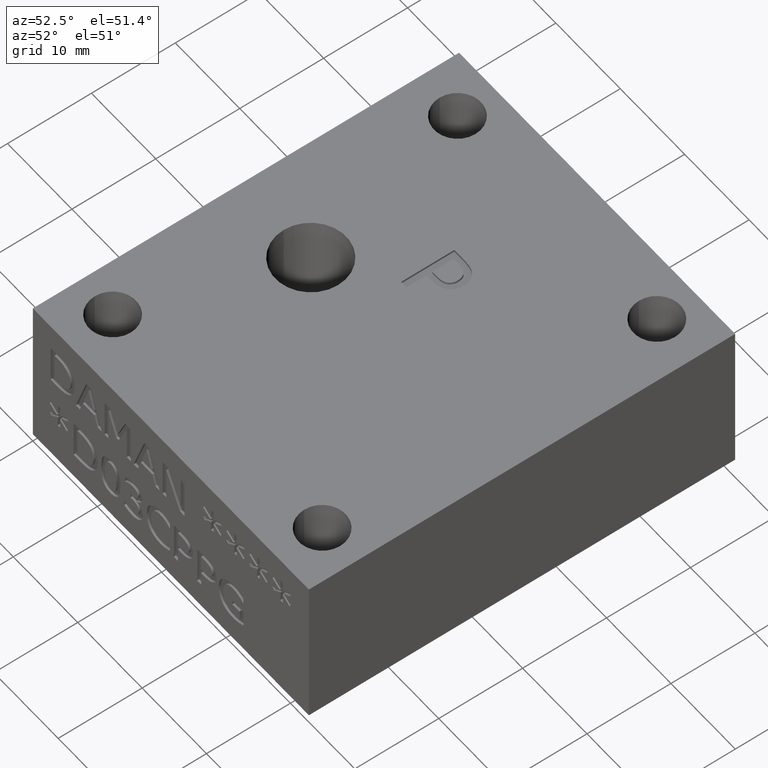
[diagram: clean part render]
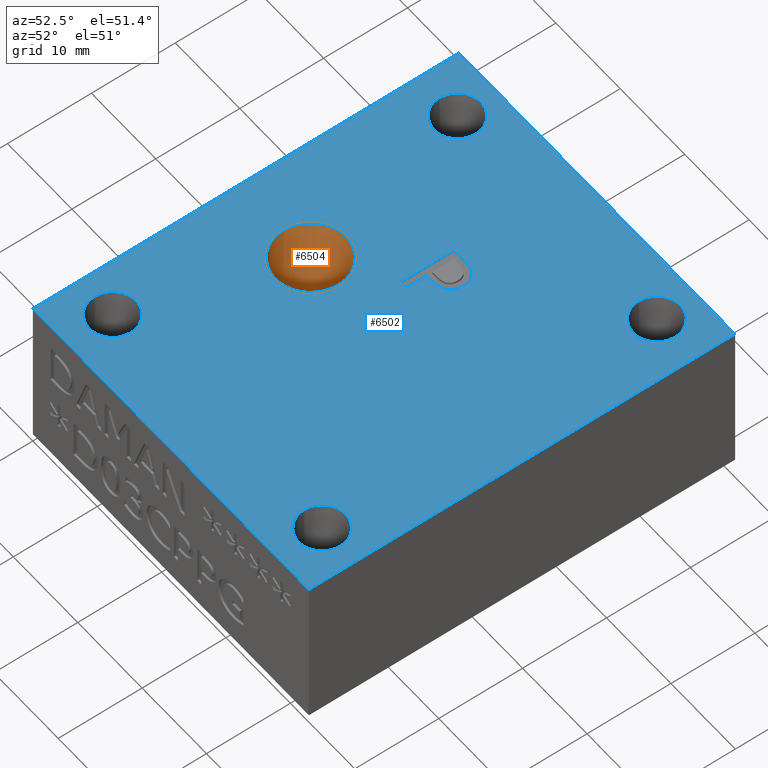
[diagram: same view with the hole feature highlighted: cylindrical wall and planar end face, labeled with their STEP entity ids]
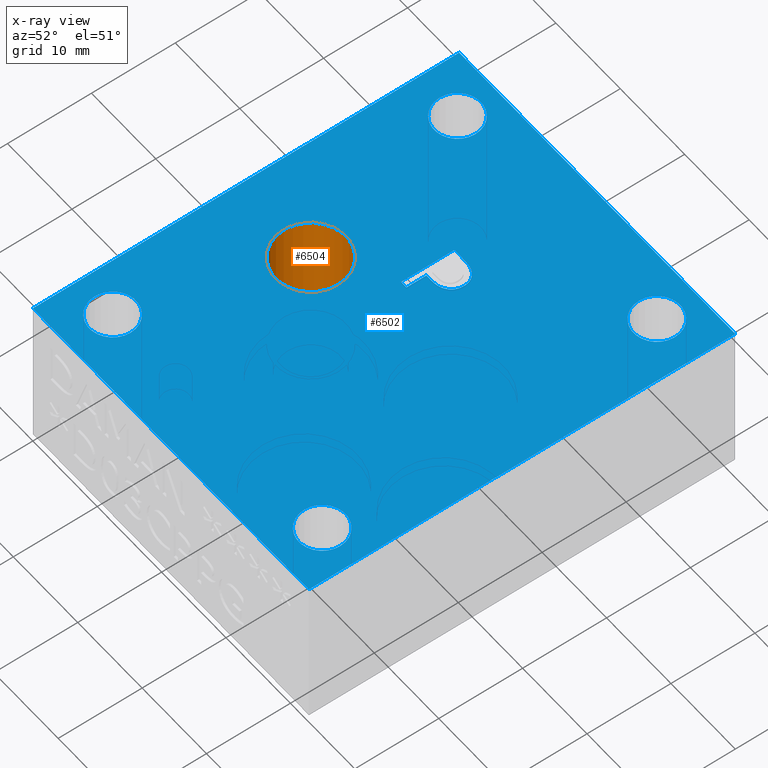
[diagram: x-ray of the same camera — body ghosted, the hole faces saturated]
A machine part, auxiliary view. The highlighted faces form one hole feature of diameter 8.4328 mm: the cylindrical wall (entity #6504, orange) and its adjacent planar end face (entity #6502, blue) — they share a circular edge in the B-rep.
The next image is the same camera in x-ray (body ghosted, the hole faces saturated) — the bore reads through the body.
Wall:
#15=CYLINDRICAL_SURFACE('',#6772,0.166);
#32=CIRCLE('',#6766,0.166);
#33=CIRCLE('',#6767,0.166);
#35=CIRCLE('',#6770,0.166);
#36=CIRCLE('',#6771,0.166);
#526=FACE_OUTER_BOUND('',#897,.T.);
#897=EDGE_LOOP('',(#5839,#5840,#5841,#5842,#5843,#5844));
#1608=LINE('',#11501,#2304);
#2304=VECTOR('',#7958,0.166);
#3115=VERTEX_POINT('',#11488);
#3116=VERTEX_POINT('',#11489);
#3118=VERTEX_POINT('',#11495);
#3119=VERTEX_POINT('',#11497);
#4036=EDGE_CURVE('',#3115,#3116,#32,.T.);
#4037=EDGE_CURVE('',#3116,#3115,#33,.T.);
#4040=EDGE_CURVE('',#3118,#3119,#35,.T.);
#4041=EDGE_CURVE('',#3119,#3118,#36,.T.);
#4042=EDGE_CURVE('',#3118,#3116,#1608,.T.);
#5839=ORIENTED_EDGE('',*,*,#4041,.F.);
#5840=ORIENTED_EDGE('',*,*,#4040,.F.);
#5841=ORIENTED_EDGE('',*,*,#4042,.T.);
#5842=ORIENTED_EDGE('',*,*,#4036,.F.);
#5843=ORIENTED_EDGE('',*,*,#4037,.F.);
#5844=ORIENTED_EDGE('',*,*,#4042,.F.);
#6504=ADVANCED_FACE('',(#526),#15,.F.);
#6766=AXIS2_PLACEMENT_3D('',#11490,#7943,#7944);
#6767=AXIS2_PLACEMENT_3D('',#11491,#7945,#7946);
#6770=AXIS2_PLACEMENT_3D('',#11498,#7952,#7953);
#6771=AXIS2_PLACEMENT_3D('',#11499,#7954,#7955);
#6772=AXIS2_PLACEMENT_3D('',#11500,#7956,#7957);
#7943=DIRECTION('center_axis',(0.,0.,-1.));
#7944=DIRECTION('ref_axis',(1.,0.,0.));
#7945=DIRECTION('center_axis',(0.,0.,-1.));
#7946=DIRECTION('ref_axis',(1.,0.,0.));
#7952=DIRECTION('center_axis',(0.,0.,1.));
#7953=DIRECTION('ref_axis',(1.,0.,0.));
#7954=DIRECTION('center_axis',(0.,0.,1.));
#7955=DIRECTION('ref_axis',(1.,0.,0.));
#7956=DIRECTION('center_axis',(0.,0.,1.));
#7957=DIRECTION('ref_axis',(1.,0.,0.));
#7958=DIRECTION('',(0.,0.,1.));
#11488=CARTESIAN_POINT('',(0.604,0.968,0.75));
#11489=CARTESIAN_POINT('',(0.272,0.968,0.75));
#11490=CARTESIAN_POINT('Origin',(0.438,0.968,0.75));
#11491=CARTESIAN_POINT('Origin',(0.438,0.968,0.75));
#11495=CARTESIAN_POINT('',(0.272,0.968,0.23));
#11497=CARTESIAN_POINT('',(0.604,0.968,0.23));
#11498=CARTESIAN_POINT('Origin',(0.438,0.968,0.23));
#11499=CARTESIAN_POINT('Origin',(0.438,0.968,0.23));
#11500=CARTESIAN_POINT('Origin',(0.438,0.968,0.49));
#11501=CARTESIAN_POINT('',(0.272,0.968,0.49));
End face:
#28=CIRCLE('',#6762,0.1095);
#29=CIRCLE('',#6763,0.1095);
#30=CIRCLE('',#6764,0.1095);
#31=CIRCLE('',#6765,0.1095);
#32=CIRCLE('',#6766,0.166);
#33=CIRCLE('',#6767,0.166);
#91=FACE_BOUND('',#890,.T.);
#92=FACE_BOUND('',#891,.T.);
#93=FACE_BOUND('',#892,.T.);
#94=FACE_BOUND('',#893,.T.);
#95=FACE_BOUND('',#894,.T.);
#96=FACE_BOUND('',#895,.T.);
#524=FACE_OUTER_BOUND('',#889,.T.);
#889=EDGE_LOOP('',(#5815,#5816,#5817,#5818));
#890=EDGE_LOOP('',(#5819));
#891=EDGE_LOOP('',(#5820));
#892=EDGE_LOOP('',(#5821));
#893=EDGE_LOOP('',(#5822));
#894=EDGE_LOOP('',(#5823,#5824));
#895=EDGE_LOOP('',(#5825,#5826,#5827,#5828,#5829,#5830,#5831,#5832,#5833));
#1568=LINE('',#11237,#2264);
#1585=LINE('',#11391,#2281);
#1588=LINE('',#11396,#2284);
#1590=LINE('',#11400,#2286);
#1599=LINE('',#11442,#2295);
#1601=LINE('',#11446,#2297);
#1604=LINE('',#11476,#2300);
#1605=LINE('',#11478,#2301);
#1606=LINE('',#11479,#2302);
#2264=VECTOR('',#7864,1.688);
#2281=VECTOR('',#7897,0.393700787401575);
#2284=VECTOR('',#7902,0.393700787401575);
#2286=VECTOR('',#7906,0.393700787401575);
#2295=VECTOR('',#7923,0.393700787401575);
#2297=VECTOR('',#7927,0.393700787401575);
#2300=VECTOR('',#7932,2.);
#2301=VECTOR('',#7933,2.);
#2302=VECTOR('',#7934,1.688);
#2519=B_SPLINE_CURVE_WITH_KNOTS('',2,(#11411,#11412,#11413,#11414),
 .UNSPECIFIED.,.F.,.F.,(3,1,3),(0.,1.,2.),.UNSPECIFIED.);
#2520=B_SPLINE_CURVE_WITH_KNOTS('',2,(#11425,#11426,#11427,#11428),
 .UNSPECIFIED.,.F.,.F.,(3,1,3),(0.,1.,2.),.UNSPECIFIED.);
#2521=B_SPLINE_CURVE_WITH_KNOTS('',2,(#11457,#11458,#11459,#11460),
 .UNSPECIFIED.,.F.,.F.,(3,1,3),(0.,1.,2.),.UNSPECIFIED.);
#2522=B_SPLINE_CURVE_WITH_KNOTS('',2,(#11470,#11471,#11472,#11473),
 .UNSPECIFIED.,.F.,.F.,(3,1,3),(0.,1.,2.),.UNSPECIFIED.);
#3073=VERTEX_POINT('',#11235);
#3074=VERTEX_POINT('',#11236);
#3098=VERTEX_POINT('',#11389);
#3099=VERTEX_POINT('',#11390);
#3100=VERTEX_POINT('',#11395);
#3101=VERTEX_POINT('',#11399);
#3102=VERTEX_POINT('',#11410);
#3103=VERTEX_POINT('',#11424);
#3106=VERTEX_POINT('',#11441);
#3107=VERTEX_POINT('',#11445);
#3108=VERTEX_POINT('',#11456);
#3109=VERTEX_POINT('',#11475);
#3110=VERTEX_POINT('',#11477);
#3111=VERTEX_POINT('',#11480);
#3112=VERTEX_POINT('',#11482);
#3113=VERTEX_POINT('',#11484);
#3114=VERTEX_POINT('',#11486);
#3115=VERTEX_POINT('',#11488);
#3116=VERTEX_POINT('',#11489);
#3977=EDGE_CURVE('',#3073,#3074,#1568,.T.);
#4006=EDGE_CURVE('',#3098,#3099,#1585,.T.);
#4009=EDGE_CURVE('',#3099,#3100,#1588,.T.);
#4011=EDGE_CURVE('',#3100,#3101,#1590,.T.);
#4013=EDGE_CURVE('',#3101,#3102,#2519,.T.);
#4015=EDGE_CURVE('',#3102,#3103,#2520,.T.);
#4022=EDGE_CURVE('',#3106,#3098,#1599,.T.);
#4024=EDGE_CURVE('',#3107,#3106,#1601,.T.);
#4026=EDGE_CURVE('',#3108,#3107,#2521,.T.);
#4028=EDGE_CURVE('',#3103,#3108,#2522,.T.);
#4029=EDGE_CURVE('',#3074,#3109,#1604,.T.);
#4030=EDGE_CURVE('',#3110,#3073,#1605,.T.);
#4031=EDGE_CURVE('',#3109,#3110,#1606,.T.);
#4032=EDGE_CURVE('',#3111,#3111,#28,.T.);
#4033=EDGE_CURVE('',#3112,#3112,#29,.T.);
#4034=EDGE_CURVE('',#3113,#3113,#30,.T.);
#4035=EDGE_CURVE('',#3114,#3114,#31,.T.);
#4036=EDGE_CURVE('',#3115,#3116,#32,.T.);
#4037=EDGE_CURVE('',#3116,#3115,#33,.T.);
#5815=ORIENTED_EDGE('',*,*,#4029,.F.);
#5816=ORIENTED_EDGE('',*,*,#3977,.F.);
#5817=ORIENTED_EDGE('',*,*,#4030,.F.);
#5818=ORIENTED_EDGE('',*,*,#4031,.F.);
#5819=ORIENTED_EDGE('',*,*,#4032,.T.);
#5820=ORIENTED_EDGE('',*,*,#4033,.T.);
#5821=ORIENTED_EDGE('',*,*,#4034,.T.);
#5822=ORIENTED_EDGE('',*,*,#4035,.T.);
#5823=ORIENTED_EDGE('',*,*,#4036,.T.);
#5824=ORIENTED_EDGE('',*,*,#4037,.T.);
#5825=ORIENTED_EDGE('',*,*,#4006,.T.);
#5826=ORIENTED_EDGE('',*,*,#4009,.T.);
#5827=ORIENTED_EDGE('',*,*,#4011,.T.);
#5828=ORIENTED_EDGE('',*,*,#4013,.T.);
#5829=ORIENTED_EDGE('',*,*,#4015,.T.);
#5830=ORIENTED_EDGE('',*,*,#4028,.T.);
#5831=ORIENTED_EDGE('',*,*,#4026,.T.);
#5832=ORIENTED_EDGE('',*,*,#4024,.T.);
#5833=ORIENTED_EDGE('',*,*,#4022,.T.);
#6175=PLANE('',#6761);
#6502=ADVANCED_FACE('',(#524,#91,#92,#93,#94,#95,#96),#6175,.T.);
#6761=AXIS2_PLACEMENT_3D('',#11474,#7930,#7931);
#6762=AXIS2_PLACEMENT_3D('',#11481,#7935,#7936);
#6763=AXIS2_PLACEMENT_3D('',#11483,#7937,#7938);
#6764=AXIS2_PLACEMENT_3D('',#11485,#7939,#7940);
#6765=AXIS2_PLACEMENT_3D('',#11487,#7941,#7942);
#6766=AXIS2_PLACEMENT_3D('',#11490,#7943,#7944);
#6767=AXIS2_PLACEMENT_3D('',#11491,#7945,#7946);
#7864=DIRECTION('',(-1.,0.,0.));
#7897=DIRECTION('',(-1.,0.,0.));
#7902=DIRECTION('',(0.,1.,0.));
#7906=DIRECTION('',(1.,0.,0.));
#7923=DIRECTION('',(0.,-1.,0.));
#7927=DIRECTION('',(-1.,0.,0.));
#7930=DIRECTION('center_axis',(0.,0.,1.));
#7931=DIRECTION('ref_axis',(1.,0.,0.));
#7932=DIRECTION('',(0.,1.,0.));
#7933=DIRECTION('',(0.,-1.,0.));
#7934=DIRECTION('',(1.,0.,0.));
#7935=DIRECTION('center_axis',(0.,0.,-1.));
#7936=DIRECTION('ref_axis',(1.,0.,0.));
#7937=DIRECTION('center_axis',(0.,0.,-1.));
#7938=DIRECTION('ref_axis',(1.,0.,0.));
#7939=DIRECTION('center_axis',(0.,0.,-1.));
#7940=DIRECTION('ref_axis',(1.,0.,0.));
#7941=DIRECTION('center_axis',(0.,0.,-1.));
#7942=DIRECTION('ref_axis',(1.,0.,0.));
#7943=DIRECTION('center_axis',(0.,0.,-1.));
#7944=DIRECTION('ref_axis',(1.,0.,0.));
#7945=DIRECTION('center_axis',(0.,0.,-1.));
#7946=DIRECTION('ref_axis',(1.,0.,0.));
#11235=CARTESIAN_POINT('',(1.688,0.,0.75));
#11236=CARTESIAN_POINT('',(0.,0.,0.75));
#11237=CARTESIAN_POINT('',(1.688,0.,0.75));
#11389=CARTESIAN_POINT('',(0.767584023378973,1.16414997541334,0.75));
#11390=CARTESIAN_POINT('',(0.734358740247497,1.16414997541334,0.75));
#11391=CARTESIAN_POINT('',(0.789179370123748,1.16414997541334,0.75));
#11395=CARTESIAN_POINT('',(0.734358740247497,1.41414997165872,0.75));
#11396=CARTESIAN_POINT('',(0.734358740247496,1.20707498582936,0.75));
#11399=CARTESIAN_POINT('',(0.79716262909358,1.41414997165872,0.75));
#11400=CARTESIAN_POINT('',(0.82058131454679,1.41414997165872,0.75));
#11410=CARTESIAN_POINT('',(0.862600229407402,1.39855029604211,0.75));
#11411=CARTESIAN_POINT('Ctrl Pts',(0.79716262909358,1.41414997165872,0.750000000000001));
#11412=CARTESIAN_POINT('Ctrl Pts',(0.819447879974448,1.41414997165872,0.750000000000001));
#11413=CARTESIAN_POINT('Ctrl Pts',(0.850647231207664,1.40685661682498,0.750000000000001));
#11414=CARTESIAN_POINT('Ctrl Pts',(0.862600229407402,1.39855029604211,0.750000000000001));
#11424=CARTESIAN_POINT('',(0.892381428311835,1.33878530504342,0.75));
#11425=CARTESIAN_POINT('Ctrl Pts',(0.862600229407402,1.39855029604211,0.750000000000001));
#11426=CARTESIAN_POINT('Ctrl Pts',(0.876579159505401,1.38902841612028,0.750000000000001));
#11427=CARTESIAN_POINT('Ctrl Pts',(0.892381428311835,1.3596524035955,0.750000000000001));
#11428=CARTESIAN_POINT('Ctrl Pts',(0.892381428311835,1.33878530504342,0.750000000000001));
#11441=CARTESIAN_POINT('',(0.767584023378973,1.25734284273333,0.75));
#11442=CARTESIAN_POINT('',(0.767584023378973,1.08207498770667,0.75));
#11445=CARTESIAN_POINT('',(0.795744476764797,1.25734284273333,0.75));
#11446=CARTESIAN_POINT('',(0.805792011689486,1.25734284273333,0.75));
#11456=CARTESIAN_POINT('',(0.870501363810619,1.28327477103107,0.75));
#11457=CARTESIAN_POINT('Ctrl Pts',(0.870501363810619,1.28327477103107,0.75));
#11458=CARTESIAN_POINT('Ctrl Pts',(0.85753539966175,1.27051140007203,0.75));
#11459=CARTESIAN_POINT('Ctrl Pts',(0.822486777821839,1.25734284273333,0.75));
#11460=CARTESIAN_POINT('Ctrl Pts',(0.795744476764797,1.25734284273333,0.75));
#11470=CARTESIAN_POINT('Ctrl Pts',(0.892381428311835,1.33878530504342,0.750000000000001));
#11471=CARTESIAN_POINT('Ctrl Pts',(0.892381428311835,1.32257784985733,0.750000000000001));
#11472=CARTESIAN_POINT('Ctrl Pts',(0.880833616491749,1.29340443052238,0.750000000000001));
#11473=CARTESIAN_POINT('Ctrl Pts',(0.870501363810619,1.28327477103107,0.750000000000001));
#11474=CARTESIAN_POINT('Origin',(0.844,1.,0.75));
#11475=CARTESIAN_POINT('',(0.,2.,0.75));
#11476=CARTESIAN_POINT('',(0.,0.,0.75));
#11477=CARTESIAN_POINT('',(1.688,2.,0.75));
#11478=CARTESIAN_POINT('',(1.688,2.,0.75));
#11479=CARTESIAN_POINT('',(0.,2.,0.75));
#11480=CARTESIAN_POINT('',(0.1255,1.812,0.75));
#11481=CARTESIAN_POINT('Origin',(0.235,1.812,0.75));
#11482=CARTESIAN_POINT('',(1.3445,1.812,0.75));
#11483=CARTESIAN_POINT('Origin',(1.454,1.812,0.75));
#11484=CARTESIAN_POINT('',(1.3755,0.218,0.75));
#11485=CARTESIAN_POINT('Origin',(1.485,0.218,0.75));
#11486=CARTESIAN_POINT('',(0.0945,0.218,0.75));
#11487=CARTESIAN_POINT('Origin',(0.204,0.218,0.75));
#11488=CARTESIAN_POINT('',(0.604,0.968,0.75));
#11489=CARTESIAN_POINT('',(0.272,0.968,0.75));
#11490=CARTESIAN_POINT('Origin',(0.438,0.968,0.75));
#11491=CARTESIAN_POINT('Origin',(0.438,0.968,0.75));